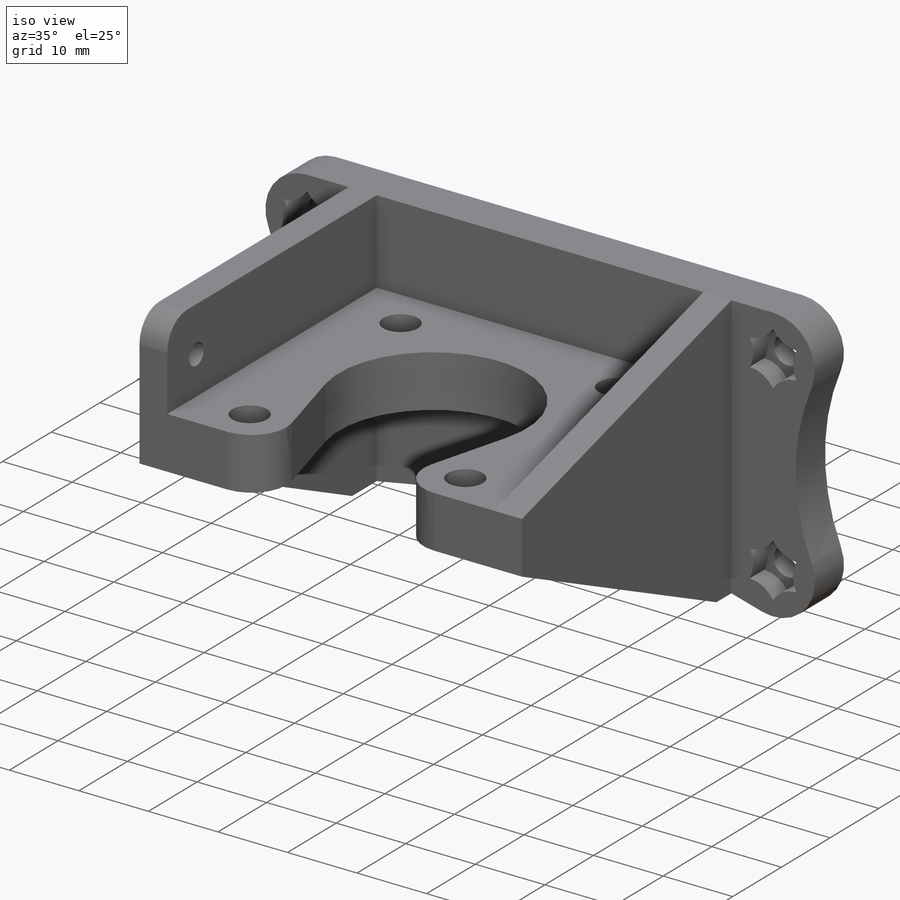
[diagram: iso view]
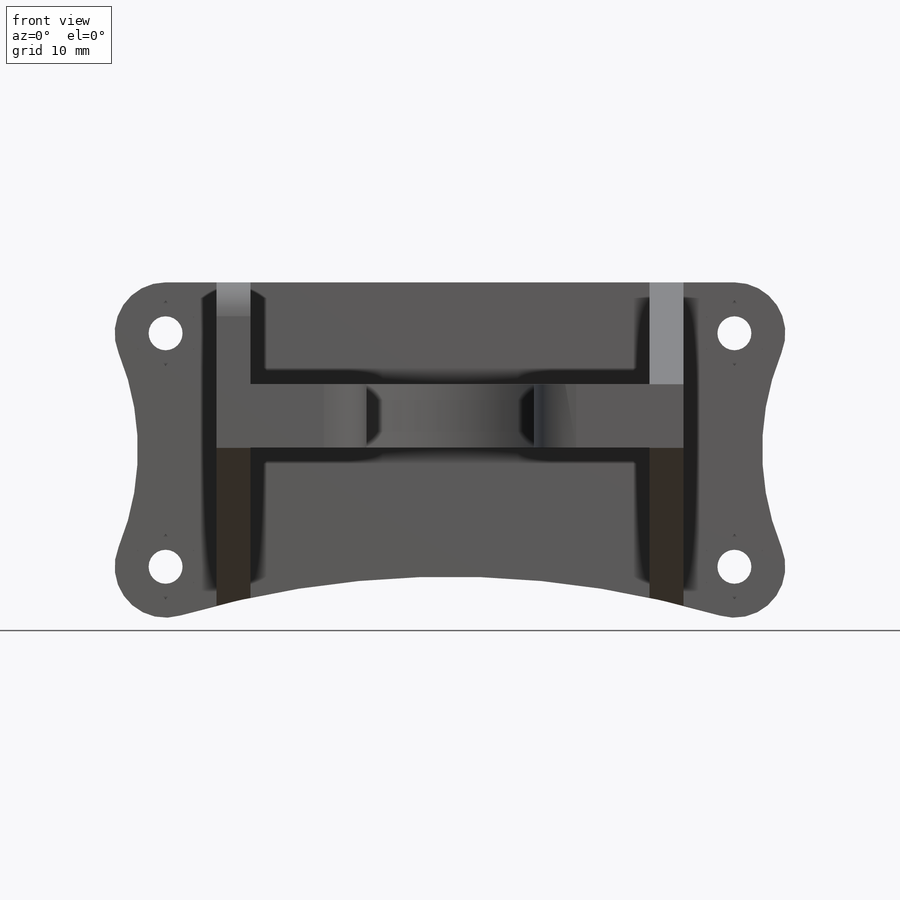
[diagram: front view]
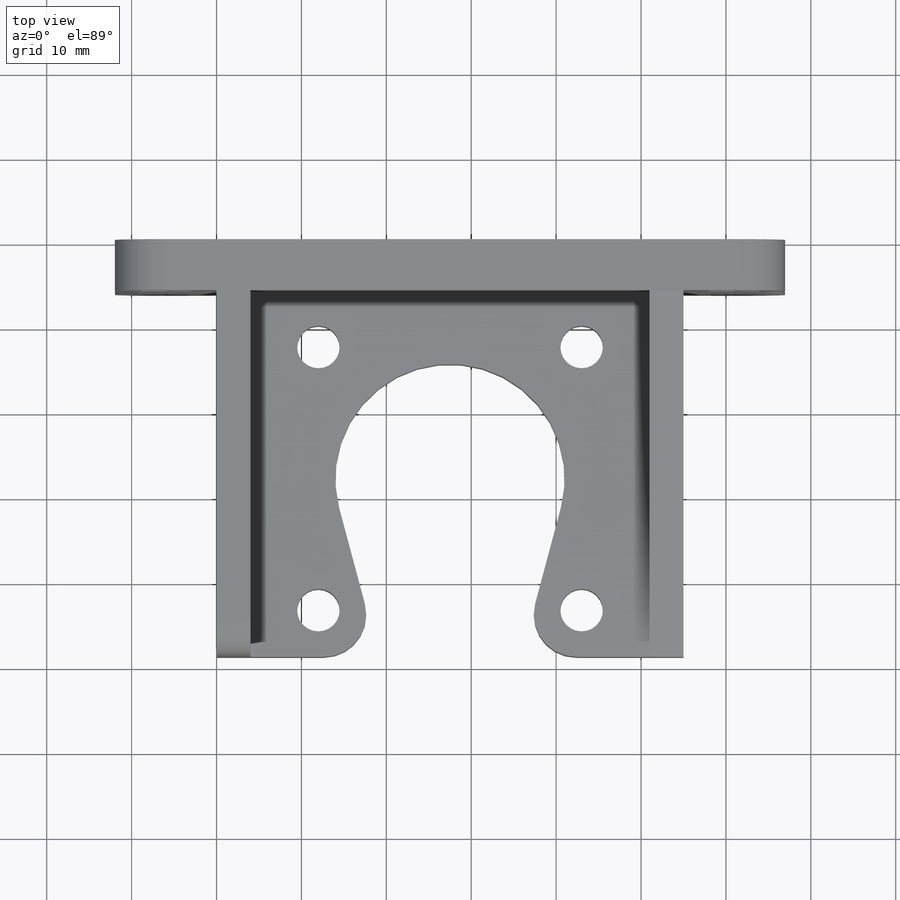
[diagram: top view]
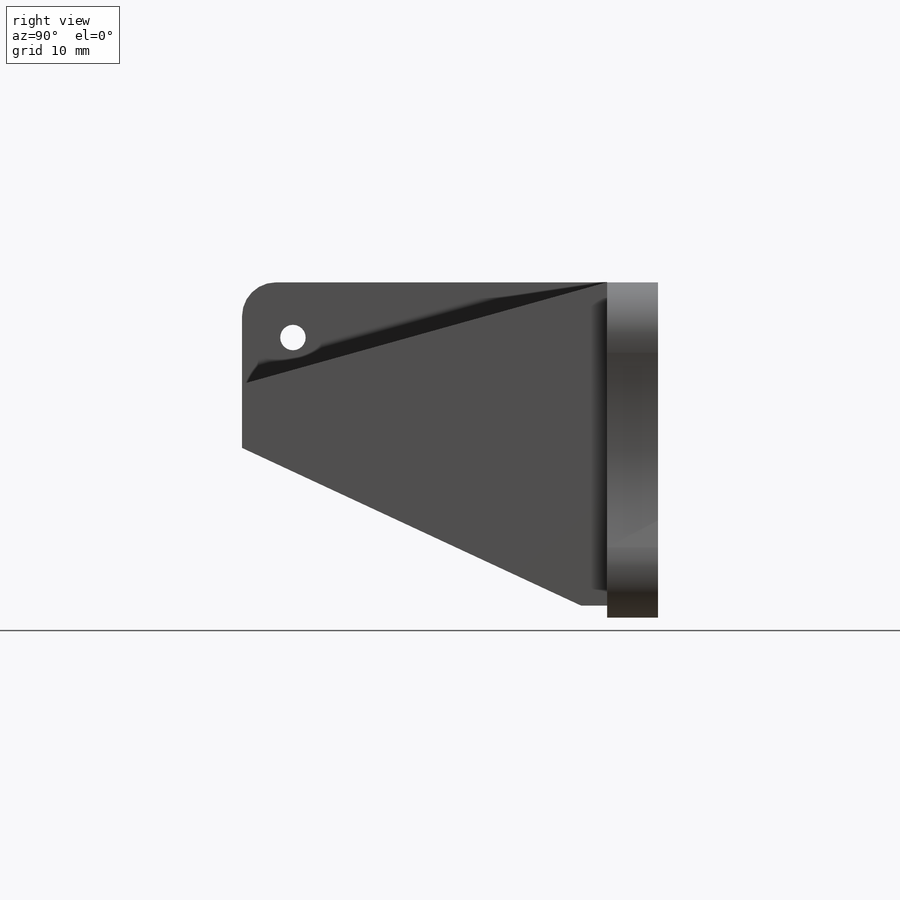
[diagram: right view]
SOLIDWORKS PART (.sldprt)
format: sldprt  version: not decoded by parser v0  size: 424,448 bytes
history: native  units: mm
features: sketch x10, cut_extrude x6, extrude x4, fillet x3, material x1, pattern_linear x1 (+11 scaffold rows collapsed)
feature tree (36):
  scaffold x11  (default folders/planes/origin — collapsed)
  material  "Material <not specified>"
  sketch  "Sketch1"  dims[c1.D1=7.5mm c1.D2=63.0mm c1.D3=32.0mm c1.D4=5.0mm c1.D5=12.0mm c1.D6=7.5mm c1.D7=22.0mm c1.D8=7.2mm c2.D1=51.0mm c2.D2=12.0mm c2.D3=4.0mm c2.D4=22.0mm]
  extrude  "Boss-Extrude1"  Depth=49mm
  sketch  "Sketch2"  dims[c1.D3=27.0mm c1.D6=5.0mm c1.D1=21.0mm c1.D2=27.5mm c1.D4=31.0mm c1.D5=31.0mm c1.D7=~8.075632mm c2.D7=15.0deg c2.D8=~9.962481mm c3.D8=15.0deg c3.D9=~14.628038mm]
  cut_extrude  "Cut-Extrude1"  [1 undecoded]
  sketch  "Sketch4"  dims[c1.D1=12.0mm c1.D2=10.0mm c1.D3=12.0mm c2.D2=20.0mm]
  extrude  "Boss-Extrude2"  Depth=6mm
  sketch  "Sketch6"
  extrude  "Boss-Extrude3"  [1 undecoded]
  sketch  "Sketch5"  dims[c1.D5=4.0mm c1.D1=6.0mm c1.D2=6.0mm c1.D3=8.0mm c1.D4=6.0mm c2.D2=6.0mm c2.D3=6.0mm c2.D4=6.0mm c2.D1=6.0mm]
  cut_extrude  "Cut-Extrude3"  Depth=10mm
  sketch  "Sketch7"
  extrude  "Boss-Extrude4"  Depth=4mm
  sketch  "Sketch8"  dims[D4=3.0mm D1=9.5mm D2=6.0mm D3=16.0mm]
  cut_extrude  "Cut-Extrude4"  Depth=8mm
  fillet  "Fillet1"  Radius=6mm
  fillet  "Fillet2"  Radius=5mm
  sketch  "Sketch9"  dims[D1=5.7mm]
  cut_extrude  "Cut-Extrude5"  Depth=3mm
  sketch  "Sketch10"  dims[D1=30.0mm D2=112.5mm]
  cut_extrude  "Cut-Extrude6"  [1 undecoded]
  fillet  "Fillet3"  Radius=4mm
  sketch  "Sketch11"  dims[D1=6.7mm]
  cut_extrude  "Cut-Extrude7"  [1 undecoded]
  pattern_linear  "LPattern1"  Count1=2 Count2=2 Spacing1=67mm Spacing2=27.5mm
decode coverage: 18 of 24 modeling features carry decoded parameters
note: ~ marks probable driven/reference dimensions
note: 4 parameter values undecoded
summary: no parameter record found for 4 features
note: suppression state not decoded; provenance and decode notes live in map.json
